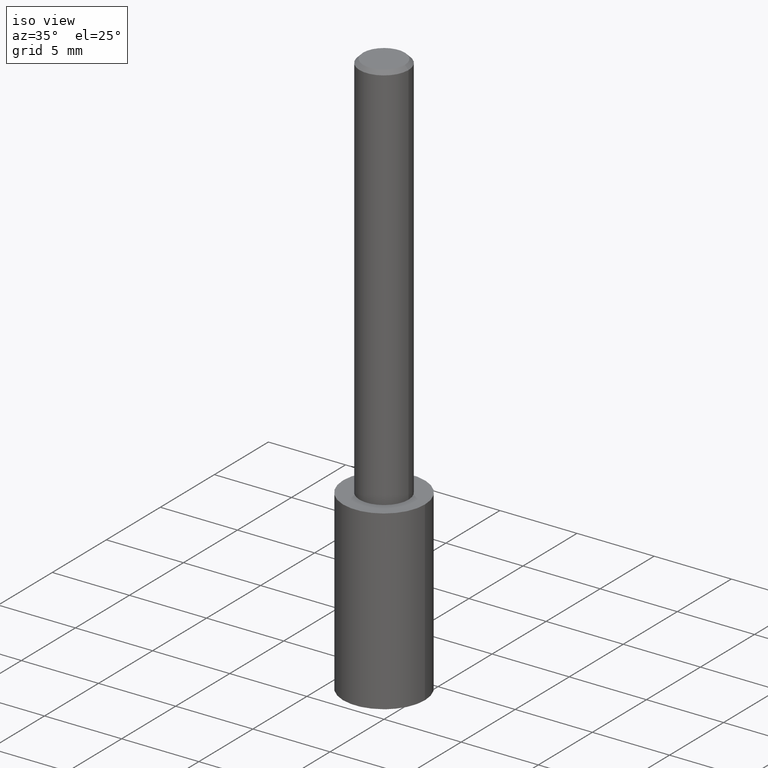
[diagram: clean part render]
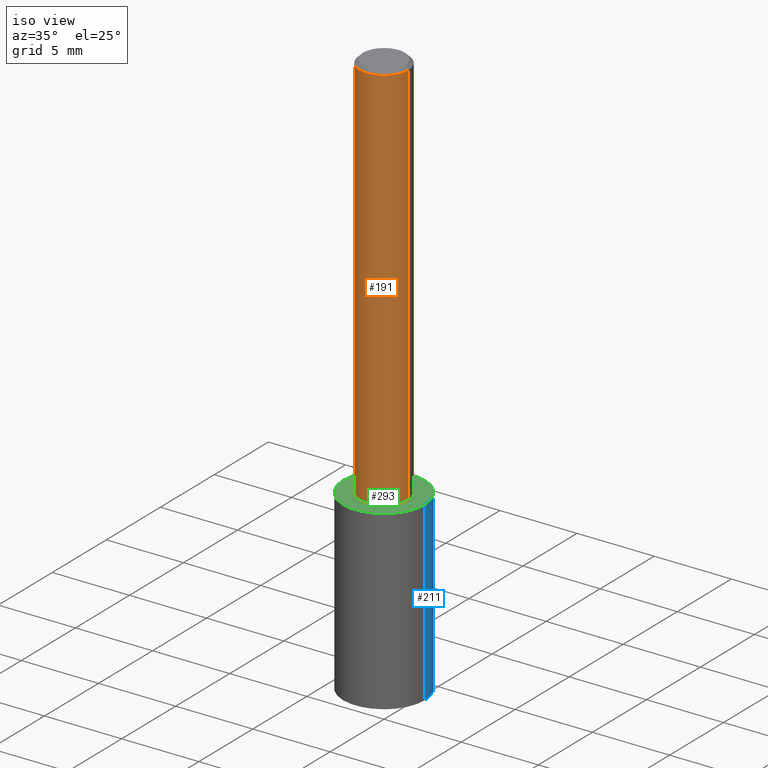
[diagram: same view with three faces highlighted in distinct colors, each labeled with its STEP entity id]
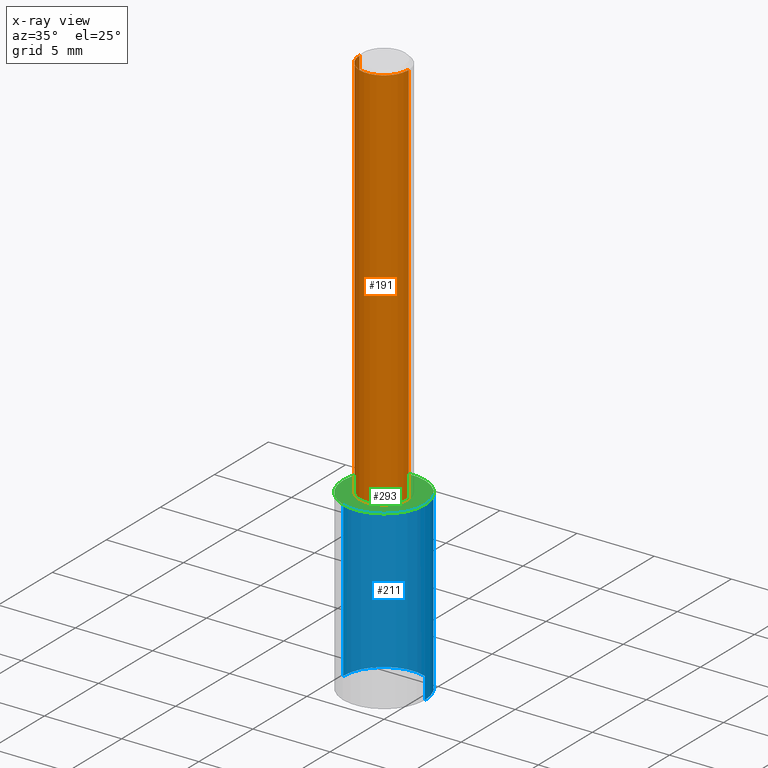
[diagram: x-ray of the same camera — body ghosted, the three highlighted faces saturated]
A machine part, iso view with three faces highlighted in distinct colors.
The next image is the same camera in x-ray (body ghosted, the three faces saturated) — at least one of them is partly hidden behind the body in this view.
Their STEP definitions:

[orange] entity #191 — the highlighted cylindrical surface (edge-blend (fillet) strip) has radius 1.5875 mm, axis along (-0, 0, 1).
#2 = VECTOR ( 'NONE', #150, 39.37007874015748143 ) ;
#53 = DIRECTION ( 'NONE',  ( -2.445468806185136597E-29, 3.491481338843145583E-15, 1.000000000000000000 ) ) ;
#56 = DIRECTION ( 'NONE',  ( 1.000000000000000000, -6.982962677686264344E-15, 0.000000000000000000 ) ) ;
#67 = EDGE_CURVE ( 'NONE', #248, #91, #277, .T. ) ;
#72 = CARTESIAN_POINT ( 'NONE',  ( -0.06250000000000006939, 4.440892098500631092E-16, -3.074334431409319267E-30 ) ) ;
#82 = CARTESIAN_POINT ( 'NONE',  ( 0.06250000000000000000, -4.691678049070464390E-16, -0.009375000000000063838 ) ) ;
#83 = AXIS2_PLACEMENT_3D ( 'NONE', #236, #53, #239 ) ;
#91 = VERTEX_POINT ( 'NONE', #125 ) ;
#95 = EDGE_LOOP ( 'NONE', ( #170, #142, #304, #198 ) ) ;
#104 = EDGE_CURVE ( 'NONE', #222, #208, #337, .T. ) ;
#108 = DIRECTION ( 'NONE',  ( -2.445468806185136597E-29, 3.491481338843145583E-15, 1.000000000000000000 ) ) ;
#111 = VECTOR ( 'NONE', #305, 39.37007874015748143 ) ;
#118 = CIRCLE ( 'NONE', #300, 0.06250000000000012490 ) ;
#125 = CARTESIAN_POINT ( 'NONE',  ( -0.06250000000000000000, -1.318017778347336672E-15, -0.009375000000000063838 ) ) ;
#133 = EDGE_CURVE ( 'NONE', #248, #222, #118, .T. ) ;
#142 = ORIENTED_EDGE ( 'NONE', *, *, #133, .T. ) ;
#150 = DIRECTION ( 'NONE',  ( -2.445468806185136877E-29, 3.491481338843145188E-15, 1.000000000000000000 ) ) ;
#156 = CARTESIAN_POINT ( 'NONE',  ( 2.445468806185137438E-29, -3.491481338843146371E-15, -1.000000000000000222 ) ) ;
#163 = EDGE_CURVE ( 'NONE', #91, #208, #237, .T. ) ;
#170 = ORIENTED_EDGE ( 'NONE', *, *, #67, .F. ) ;
#191 = ADVANCED_FACE ( 'NONE', ( #263 ), #266, .T. ) ;
#198 = ORIENTED_EDGE ( 'NONE', *, *, #163, .F. ) ;
#208 = VERTEX_POINT ( 'NONE', #82 ) ;
#212 = CARTESIAN_POINT ( 'NONE',  ( -0.06250000000000012490, -1.318017778347335489E-15, -1.000000000000000222 ) ) ;
#213 = DIRECTION ( 'NONE',  ( 1.000000000000000000, -6.982962677686266711E-15, 4.876176775795935793E-29 ) ) ;
#222 = VERTEX_POINT ( 'NONE', #234 ) ;
#234 = CARTESIAN_POINT ( 'NONE',  ( 0.06250000000000012490, -3.927916506198539224E-15, -1.000000000000000222 ) ) ;
#235 = DIRECTION ( 'NONE',  ( -2.445468806185136597E-29, 3.491481338843145583E-15, 1.000000000000000000 ) ) ;
#236 = CARTESIAN_POINT ( 'NONE',  ( 2.292627005798581499E-31, -3.273263755165471417E-17, -0.009375000000000063838 ) ) ;
#237 = CIRCLE ( 'NONE', #83, 0.06250000000000000000 ) ;
#239 = DIRECTION ( 'NONE',  ( 1.000000000000000000, -6.982962677686266711E-15, 0.000000000000000000 ) ) ;
#248 = VERTEX_POINT ( 'NONE', #212 ) ;
#263 = FACE_OUTER_BOUND ( 'NONE', #95, .T. ) ;
#266 = CYLINDRICAL_SURFACE ( 'NONE', #268, 0.06250000000000006939 ) ;
#268 = AXIS2_PLACEMENT_3D ( 'NONE', #317, #235, #213 ) ;
#277 = LINE ( 'NONE', #72, #111 ) ;
#300 = AXIS2_PLACEMENT_3D ( 'NONE', #156, #108, #56 ) ;
#304 = ORIENTED_EDGE ( 'NONE', *, *, #104, .T. ) ;
#305 = DIRECTION ( 'NONE',  ( -2.445468806185136877E-29, 3.491481338843145188E-15, 1.000000000000000000 ) ) ;
#312 = CARTESIAN_POINT ( 'NONE',  ( 0.06250000000000006939, -4.364351673553921624E-16, 3.047610484872463374E-30 ) ) ;
#317 = CARTESIAN_POINT ( 'NONE',  ( 0.000000000000000000, 0.000000000000000000, 0.000000000000000000 ) ) ;
#337 = LINE ( 'NONE', #312, #2 ) ;

[blue] entity #211 — the highlighted cylindrical surface (partial cylindrical patch) has radius 2.6505 mm, axis along (-0, 0, 1).
#6 = FACE_OUTER_BOUND ( 'NONE', #146, .T. ) ;
#12 = VERTEX_POINT ( 'NONE', #180 ) ;
#28 = VECTOR ( 'NONE', #203, 39.37007874015748143 ) ;
#29 = LINE ( 'NONE', #340, #94 ) ;
#35 = VERTEX_POINT ( 'NONE', #311 ) ;
#44 = DIRECTION ( 'NONE',  ( -2.445468806185136597E-29, 3.491481338843145583E-15, 1.000000000000000000 ) ) ;
#55 = CARTESIAN_POINT ( 'NONE',  ( 2.445468806185136877E-29, -3.491481338843145977E-15, -1.000000000000000222 ) ) ;
#64 = EDGE_CURVE ( 'NONE', #333, #35, #258, .T. ) ;
#69 = CARTESIAN_POINT ( 'NONE',  ( 0.1043499999999999844, -4.220153494259708388E-15, -1.000000000000000222 ) ) ;
#71 = VERTEX_POINT ( 'NONE', #69 ) ;
#85 = DIRECTION ( 'NONE',  ( -2.445468806185136597E-29, 3.491481338843145583E-15, 1.000000000000000000 ) ) ;
#94 = VECTOR ( 'NONE', #135, 39.37007874015748143 ) ;
#98 = EDGE_CURVE ( 'NONE', #35, #12, #102, .T. ) ;
#102 = LINE ( 'NONE', #230, #28 ) ;
#109 = DIRECTION ( 'NONE',  ( 1.000000000000000000, -6.982962677686268288E-15, 0.000000000000000000 ) ) ;
#134 = DIRECTION ( 'NONE',  ( 1.000000000000000000, -6.982962677686268288E-15, 0.000000000000000000 ) ) ;
#135 = DIRECTION ( 'NONE',  ( -2.445468806185136877E-29, 3.491481338843145188E-15, 1.000000000000000000 ) ) ;
#139 = ORIENTED_EDGE ( 'NONE', *, *, #231, .F. ) ;
#146 = EDGE_LOOP ( 'NONE', ( #272, #147, #139, #221 ) ) ;
#147 = ORIENTED_EDGE ( 'NONE', *, *, #98, .T. ) ;
#175 = CARTESIAN_POINT ( 'NONE',  ( 3.549208643447727704E-29, -5.067329305087193163E-15, -1.451340795871526312 ) ) ;
#179 = AXIS2_PLACEMENT_3D ( 'NONE', #175, #44, #254 ) ;
#180 = CARTESIAN_POINT ( 'NONE',  ( -0.1043499999999999844, -3.537953977199505038E-15, -1.000000000000000222 ) ) ;
#203 = DIRECTION ( 'NONE',  ( -2.445468806185136877E-29, 3.491481338843145188E-15, 1.000000000000000000 ) ) ;
#211 = ADVANCED_FACE ( 'NONE', ( #6 ), #233, .T. ) ;
#221 = ORIENTED_EDGE ( 'NONE', *, *, #223, .F. ) ;
#223 = EDGE_CURVE ( 'NONE', #333, #71, #29, .T. ) ;
#229 = CARTESIAN_POINT ( 'NONE',  ( 0.1043499999999999706, -5.796001460503755574E-15, -1.451340795871526312 ) ) ;
#230 = CARTESIAN_POINT ( 'NONE',  ( -0.1043499999999999844, -2.750029994077481840E-15, -1.000000000000000222 ) ) ;
#231 = EDGE_CURVE ( 'NONE', #71, #12, #281, .T. ) ;
#233 = CYLINDRICAL_SURFACE ( 'NONE', #295, 0.1043499999999999844 ) ;
#254 = DIRECTION ( 'NONE',  ( 1.000000000000000000, -6.982962677686263555E-15, 0.000000000000000000 ) ) ;
#258 = CIRCLE ( 'NONE', #179, 0.1043499999999999844 ) ;
#259 = DIRECTION ( 'NONE',  ( -2.445468806185136597E-29, 3.491481338843145583E-15, 1.000000000000000000 ) ) ;
#272 = ORIENTED_EDGE ( 'NONE', *, *, #64, .T. ) ;
#281 = CIRCLE ( 'NONE', #316, 0.1043499999999999844 ) ;
#295 = AXIS2_PLACEMENT_3D ( 'NONE', #339, #259, #134 ) ;
#311 = CARTESIAN_POINT ( 'NONE',  ( -0.1043499999999999706, -4.325877960321529026E-15, -1.451340795871526312 ) ) ;
#316 = AXIS2_PLACEMENT_3D ( 'NONE', #55, #85, #109 ) ;
#333 = VERTEX_POINT ( 'NONE', #229 ) ;
#339 = CARTESIAN_POINT ( 'NONE',  ( 2.445468806185137438E-29, -3.491481338843146371E-15, -1.000000000000000222 ) ) ;
#340 = CARTESIAN_POINT ( 'NONE',  ( 0.1043499999999999844, -4.220153494259708388E-15, -1.000000000000000222 ) ) ;

[green] entity #293 — the highlighted planar face has unit normal (0, -0, -1).
#12 = VERTEX_POINT ( 'NONE', #180 ) ;
#24 = AXIS2_PLACEMENT_3D ( 'NONE', #172, #228, #335 ) ;
#39 = CARTESIAN_POINT ( 'NONE',  ( 3.359526907808025227E-29, -2.182498112362904859E-15, -1.000000000000000222 ) ) ;
#52 = DIRECTION ( 'NONE',  ( -1.000000000000000000, 6.982962677686265922E-15, -4.876176775795935793E-29 ) ) ;
#55 = CARTESIAN_POINT ( 'NONE',  ( 2.445468806185136877E-29, -3.491481338843145977E-15, -1.000000000000000222 ) ) ;
#69 = CARTESIAN_POINT ( 'NONE',  ( 0.1043499999999999844, -4.220153494259708388E-15, -1.000000000000000222 ) ) ;
#70 = AXIS2_PLACEMENT_3D ( 'NONE', #39, #137, #52 ) ;
#71 = VERTEX_POINT ( 'NONE', #69 ) ;
#73 = FACE_OUTER_BOUND ( 'NONE', #199, .T. ) ;
#85 = DIRECTION ( 'NONE',  ( -2.445468806185136597E-29, 3.491481338843145583E-15, 1.000000000000000000 ) ) ;
#99 = ORIENTED_EDGE ( 'NONE', *, *, #231, .T. ) ;
#109 = DIRECTION ( 'NONE',  ( 1.000000000000000000, -6.982962677686268288E-15, 0.000000000000000000 ) ) ;
#119 = ORIENTED_EDGE ( 'NONE', *, *, #126, .T. ) ;
#126 = EDGE_CURVE ( 'NONE', #12, #71, #226, .T. ) ;
#137 = DIRECTION ( 'NONE',  ( 2.438088387897960049E-29, -3.491481338843145188E-15, -1.000000000000000000 ) ) ;
#172 = CARTESIAN_POINT ( 'NONE',  ( 2.445468806185136877E-29, -3.491481338843145977E-15, -1.000000000000000222 ) ) ;
#180 = CARTESIAN_POINT ( 'NONE',  ( -0.1043499999999999844, -3.537953977199505038E-15, -1.000000000000000222 ) ) ;
#199 = EDGE_LOOP ( 'NONE', ( #99, #119 ) ) ;
#226 = CIRCLE ( 'NONE', #24, 0.1043499999999999844 ) ;
#228 = DIRECTION ( 'NONE',  ( -2.445468806185136597E-29, 3.491481338843145583E-15, 1.000000000000000000 ) ) ;
#231 = EDGE_CURVE ( 'NONE', #71, #12, #281, .T. ) ;
#271 = PLANE ( 'NONE',  #70 ) ;
#281 = CIRCLE ( 'NONE', #316, 0.1043499999999999844 ) ;
#293 = ADVANCED_FACE ( 'NONE', ( #73 ), #271, .F. ) ;
#316 = AXIS2_PLACEMENT_3D ( 'NONE', #55, #85, #109 ) ;
#335 = DIRECTION ( 'NONE',  ( 1.000000000000000000, -6.982962677686268288E-15, 0.000000000000000000 ) ) ;